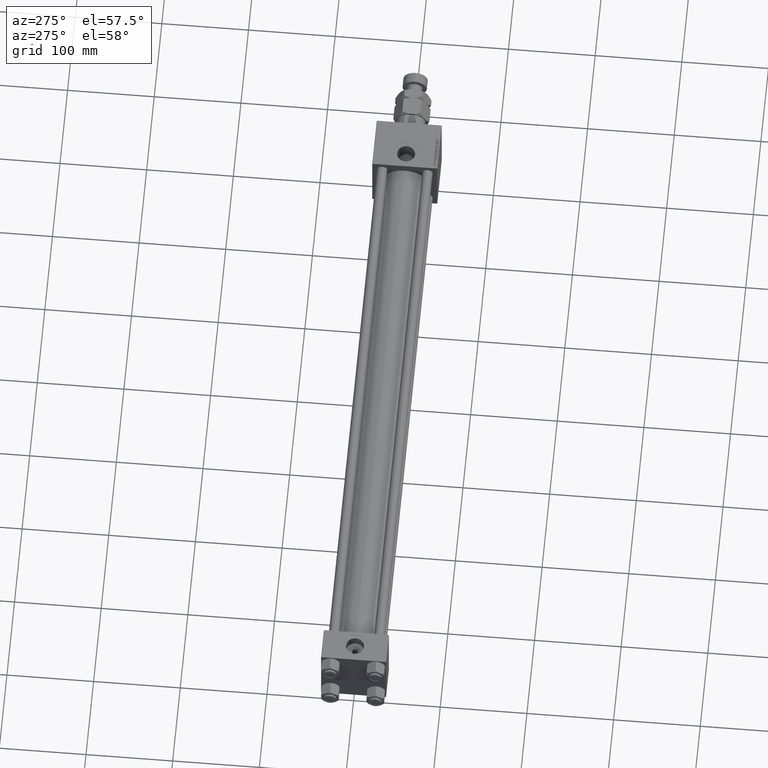
[diagram: clean part render]
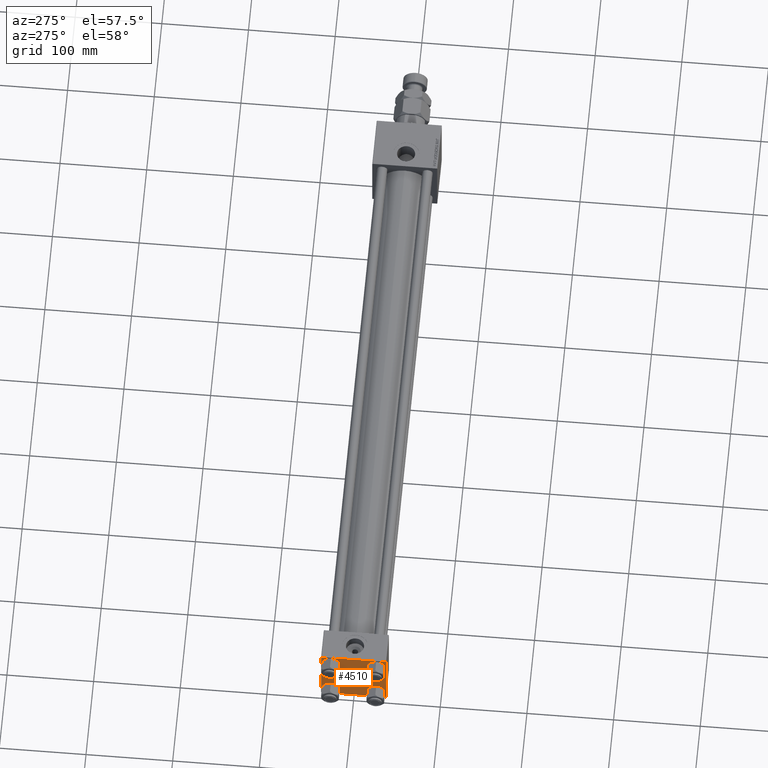
[diagram: same view with one face highlighted and labeled with its STEP entity id]
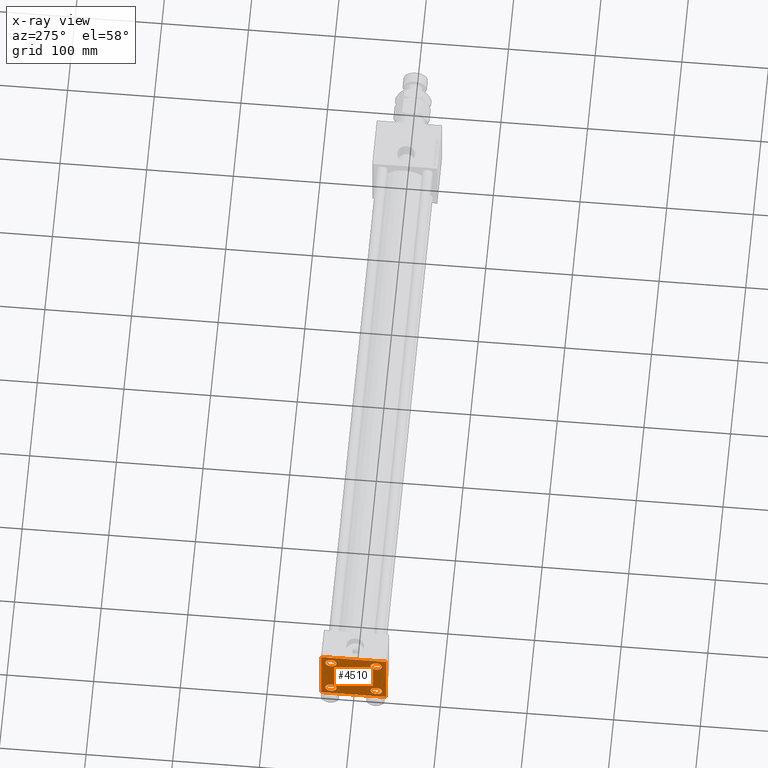
[diagram: x-ray of the same camera — body ghosted, the highlighted face saturated]
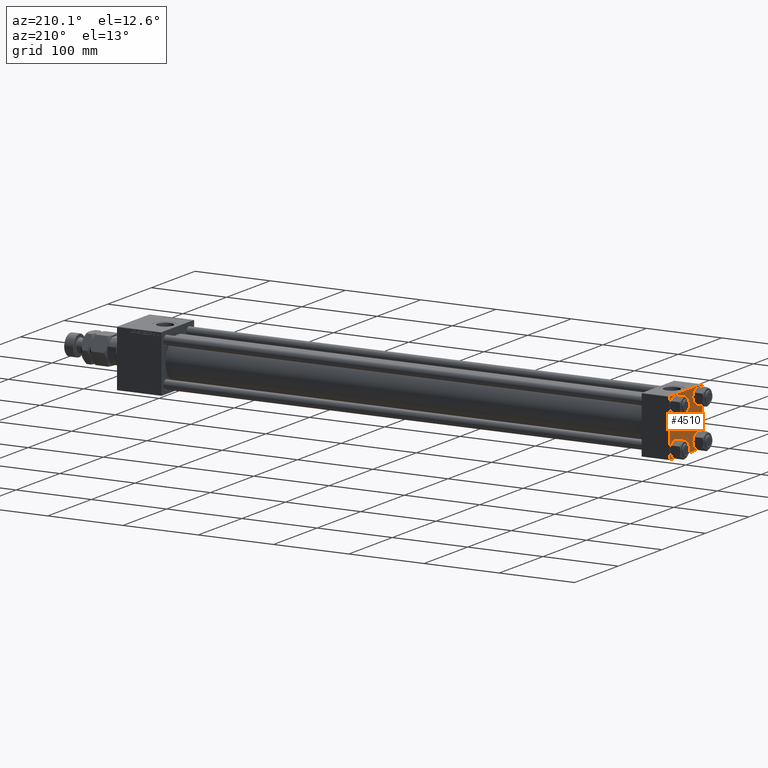
[diagram: same view with one face highlighted and labeled with its STEP entity id]
A machine part, auxiliary view. The second image highlights one B-rep face of the part: STEP entity #4510.
The next image is the same camera in x-ray: the body ghosted, the highlighted face saturated — about 0% of this face is hidden behind the body in this view.
A second angle (auxiliary view) of the same face is appended — the face is thin or edge-on in the first view.
In plain terms, the highlighted planar face has unit normal (-1, 0, 0).
Its self-contained STEP definition (entity closure, byte-faithful):
#8 = CARTESIAN_POINT ( 'NONE',  ( 0.000000000000000000, -37.24999999999975842, -37.25000000000027001 ) ) ;
#1369 = DIRECTION ( 'NONE',  ( 0.000000000000000000, 9.251858538542971581E-17, -1.000000000000000000 ) ) ;
#1380 = DIRECTION ( 'NONE',  ( 1.000000000000000000, -0.000000000000000000, 0.000000000000000000 ) ) ;
#1651 = DIRECTION ( 'NONE',  ( 0.000000000000000000, 0.000000000000000000, -1.000000000000000000 ) ) ;
#1669 = CARTESIAN_POINT ( 'NONE',  ( 0.000000000000000000, 37.49999999999999289, 37.50000000000000000 ) ) ;
#1820 = ORIENTED_EDGE ( 'NONE', *, *, #16905, .T. ) ;
#1882 = VERTEX_POINT ( 'NONE', #41108 ) ;
#1914 = DIRECTION ( 'NONE',  ( 0.000000000000000000, 0.000000000000000000, 1.000000000000000000 ) ) ;
#2213 = EDGE_LOOP ( 'NONE', ( #6030, #50611, #45205, #48214, #2912, #7703, #45341, #10768 ) ) ;
#2555 = AXIS2_PLACEMENT_3D ( 'NONE', #24634, #8550, #40721 ) ;
#2912 = ORIENTED_EDGE ( 'NONE', *, *, #47813, .F. ) ;
#3474 = AXIS2_PLACEMENT_3D ( 'NONE', #16465, #32538, #36254 ) ;
#3576 = DIRECTION ( 'NONE',  ( -0.000000000000000000, 0.000000000000000000, 1.000000000000000000 ) ) ;
#4510 = ADVANCED_FACE ( 'NONE', ( #32820, #32049, #39704, #48912, #20431 ), #24385, .T. ) ;
#6011 = VERTEX_POINT ( 'NONE', #24619 ) ;
#6030 = ORIENTED_EDGE ( 'NONE', *, *, #16854, .T. ) ;
#6479 = VERTEX_POINT ( 'NONE', #46975 ) ;
#6953 = VERTEX_POINT ( 'NONE', #24373 ) ;
#7194 = EDGE_CURVE ( 'NONE', #23714, #8152, #42148, .T. ) ;
#7410 = CARTESIAN_POINT ( 'NONE',  ( 0.000000000000000000, -26.14999999999999147, -19.64999999999999503 ) ) ;
#7584 = VERTEX_POINT ( 'NONE', #35563 ) ;
#7591 = CARTESIAN_POINT ( 'NONE',  ( 0.000000000000000000, 26.14999999999999858, 26.15000000000000213 ) ) ;
#7703 = ORIENTED_EDGE ( 'NONE', *, *, #8819, .T. ) ;
#7937 = DIRECTION ( 'NONE',  ( 1.000000000000000000, -0.000000000000000000, 0.000000000000000000 ) ) ;
#8034 = DIRECTION ( 'NONE',  ( -0.000000000000000000, 0.7071067811865474617, 0.7071067811865474617 ) ) ;
#8152 = VERTEX_POINT ( 'NONE', #26736 ) ;
#8513 = VECTOR ( 'NONE', #34648, 1000.000000000000000 ) ;
#8550 = DIRECTION ( 'NONE',  ( 1.000000000000000000, -0.000000000000000000, 0.000000000000000000 ) ) ;
#8716 = DIRECTION ( 'NONE',  ( 0.000000000000000000, 0.000000000000000000, 1.000000000000000000 ) ) ;
#8819 = EDGE_CURVE ( 'NONE', #18507, #1882, #36779, .T. ) ;
#9841 = VECTOR ( 'NONE', #1651, 1000.000000000000000 ) ;
#10727 = EDGE_CURVE ( 'NONE', #8152, #23714, #24590, .T. ) ;
#10768 = ORIENTED_EDGE ( 'NONE', *, *, #46869, .T. ) ;
#11903 = CARTESIAN_POINT ( 'NONE',  ( 0.000000000000000000, -26.14999999999999147, -26.15000000000000924 ) ) ;
#12319 = DIRECTION ( 'NONE',  ( 1.000000000000000000, -0.000000000000000000, 0.000000000000000000 ) ) ;
#13194 = VERTEX_POINT ( 'NONE', #29707 ) ;
#13600 = CIRCLE ( 'NONE', #3474, 6.500000000000015987 ) ;
#13814 = LINE ( 'NONE', #1669, #8513 ) ;
#14269 = CARTESIAN_POINT ( 'NONE',  ( 0.000000000000000000, 37.49999999999999289, 37.00000000000000000 ) ) ;
#14309 = CIRCLE ( 'NONE', #31970, 6.500000000000023093 ) ;
#14438 = EDGE_CURVE ( 'NONE', #6011, #7584, #22989, .T. ) ;
#14492 = EDGE_LOOP ( 'NONE', ( #23739, #44858 ) ) ;
#14847 = LINE ( 'NONE', #34361, #9841 ) ;
#15669 = DIRECTION ( 'NONE',  ( 1.000000000000000000, -0.000000000000000000, 0.000000000000000000 ) ) ;
#16012 = EDGE_CURVE ( 'NONE', #13194, #6011, #28233, .T. ) ;
#16224 = CARTESIAN_POINT ( 'NONE',  ( -0.000000000000000000, -37.25000000000000000, 37.25000000000000000 ) ) ;
#16285 = VECTOR ( 'NONE', #47007, 1000.000000000000000 ) ;
#16465 = CARTESIAN_POINT ( 'NONE',  ( 0.000000000000000000, -26.14999999999999147, -26.15000000000000924 ) ) ;
#16854 = EDGE_CURVE ( 'NONE', #44135, #13194, #14847, .T. ) ;
#16905 = EDGE_CURVE ( 'NONE', #6479, #49017, #20779, .T. ) ;
#17103 = CARTESIAN_POINT ( 'NONE',  ( 0.000000000000000000, -37.50000000000000711, 36.99999999999999289 ) ) ;
#18264 = DIRECTION ( 'NONE',  ( 1.000000000000000000, -0.000000000000000000, 0.000000000000000000 ) ) ;
#18507 = VERTEX_POINT ( 'NONE', #17103 ) ;
#18984 = VERTEX_POINT ( 'NONE', #37214 ) ;
#19596 = LINE ( 'NONE', #31723, #50292 ) ;
#19907 = CARTESIAN_POINT ( 'NONE',  ( 0.000000000000000000, 0.000000000000000000, 0.000000000000000000 ) ) ;
#20315 = DIRECTION ( 'NONE',  ( -0.000000000000000000, -0.7071067811865474617, -0.7071067811865474617 ) ) ;
#20431 = FACE_OUTER_BOUND ( 'NONE', #2213, .T. ) ;
#20512 = CIRCLE ( 'NONE', #26443, 6.500000000000023093 ) ;
#20779 = CIRCLE ( 'NONE', #25832, 6.500000000000023093 ) ;
#22627 = EDGE_LOOP ( 'NONE', ( #37415, #51838 ) ) ;
#22989 = LINE ( 'NONE', #25686, #16285 ) ;
#23163 = EDGE_CURVE ( 'NONE', #6953, #18984, #14309, .T. ) ;
#23167 = CARTESIAN_POINT ( 'NONE',  ( 0.000000000000000000, 26.14999999999999858, -32.65000000000001990 ) ) ;
#23714 = VERTEX_POINT ( 'NONE', #23167 ) ;
#23739 = ORIENTED_EDGE ( 'NONE', *, *, #10727, .T. ) ;
#23757 = DIRECTION ( 'NONE',  ( 0.000000000000000000, -0.7071067811865524577, 0.7071067811865426878 ) ) ;
#24373 = CARTESIAN_POINT ( 'NONE',  ( 0.000000000000000000, 26.14999999999999858, 32.65000000000002700 ) ) ;
#24385 = PLANE ( 'NONE',  #47947 ) ;
#24568 = EDGE_LOOP ( 'NONE', ( #47981, #42750 ) ) ;
#24590 = CIRCLE ( 'NONE', #33029, 6.500000000000015987 ) ;
#24619 = CARTESIAN_POINT ( 'NONE',  ( 0.000000000000000000, 36.99999999999997868, -37.50000000000000000 ) ) ;
#24634 = CARTESIAN_POINT ( 'NONE',  ( 0.000000000000000000, 26.14999999999999858, -26.15000000000000213 ) ) ;
#25090 = LINE ( 'NONE', #41713, #30161 ) ;
#25102 = CARTESIAN_POINT ( 'NONE',  ( 0.000000000000000000, -26.14999999999999147, 26.15000000000000924 ) ) ;
#25686 = CARTESIAN_POINT ( 'NONE',  ( 0.000000000000000000, 37.49999999999999289, -37.50000000000000000 ) ) ;
#25832 = AXIS2_PLACEMENT_3D ( 'NONE', #27473, #30931, #39857 ) ;
#26166 = CARTESIAN_POINT ( 'NONE',  ( 0.000000000000000000, 26.14999999999999858, 26.15000000000000213 ) ) ;
#26443 = AXIS2_PLACEMENT_3D ( 'NONE', #25102, #1380, #33550 ) ;
#26579 = EDGE_CURVE ( 'NONE', #39595, #1882, #13814, .T. ) ;
#26736 = CARTESIAN_POINT ( 'NONE',  ( 0.000000000000000000, 26.14999999999999858, -19.64999999999998792 ) ) ;
#27473 = CARTESIAN_POINT ( 'NONE',  ( 0.000000000000000000, -26.14999999999999147, 26.15000000000000924 ) ) ;
#28233 = LINE ( 'NONE', #44317, #29189 ) ;
#28669 = DIRECTION ( 'NONE',  ( 0.000000000000000000, 0.000000000000000000, 1.000000000000000000 ) ) ;
#29189 = VECTOR ( 'NONE', #20315, 1000.000000000000114 ) ;
#29707 = CARTESIAN_POINT ( 'NONE',  ( 0.000000000000000000, 37.49999999999999289, -36.99999999999998579 ) ) ;
#30161 = VECTOR ( 'NONE', #1369, 1000.000000000000000 ) ;
#30340 = EDGE_CURVE ( 'NONE', #37078, #38185, #13600, .T. ) ;
#30931 = DIRECTION ( 'NONE',  ( 1.000000000000000000, -0.000000000000000000, 0.000000000000000000 ) ) ;
#31723 = CARTESIAN_POINT ( 'NONE',  ( 0.000000000000000000, 37.24999999999999289, 37.24999999999999289 ) ) ;
#31970 = AXIS2_PLACEMENT_3D ( 'NONE', #7591, #12319, #28669 ) ;
#32049 = FACE_BOUND ( 'NONE', #24568, .T. ) ;
#32185 = CIRCLE ( 'NONE', #43168, 6.500000000000023093 ) ;
#32538 = DIRECTION ( 'NONE',  ( 1.000000000000000000, -0.000000000000000000, 0.000000000000000000 ) ) ;
#32692 = EDGE_LOOP ( 'NONE', ( #42738, #1820 ) ) ;
#32820 = FACE_BOUND ( 'NONE', #32692, .T. ) ;
#33029 = AXIS2_PLACEMENT_3D ( 'NONE', #35968, #15669, #51012 ) ;
#33222 = EDGE_CURVE ( 'NONE', #18984, #6953, #32185, .T. ) ;
#33550 = DIRECTION ( 'NONE',  ( 0.000000000000000000, 0.000000000000000000, 1.000000000000000000 ) ) ;
#34361 = CARTESIAN_POINT ( 'NONE',  ( 0.000000000000000000, 37.49999999999999289, 37.50000000000000000 ) ) ;
#34643 = CARTESIAN_POINT ( 'NONE',  ( 0.000000000000000000, -26.14999999999999147, 32.65000000000003411 ) ) ;
#34648 = DIRECTION ( 'NONE',  ( 0.000000000000000000, -1.000000000000000000, -9.251858538542971581E-17 ) ) ;
#34902 = EDGE_CURVE ( 'NONE', #7584, #45014, #51463, .T. ) ;
#35563 = CARTESIAN_POINT ( 'NONE',  ( 0.000000000000000000, -37.00000000000002132, -37.50000000000000711 ) ) ;
#35629 = EDGE_CURVE ( 'NONE', #49017, #6479, #20512, .T. ) ;
#35968 = CARTESIAN_POINT ( 'NONE',  ( 0.000000000000000000, 26.14999999999999858, -26.15000000000000213 ) ) ;
#36254 = DIRECTION ( 'NONE',  ( 0.000000000000000000, 0.000000000000000000, 1.000000000000000000 ) ) ;
#36779 = LINE ( 'NONE', #16224, #47286 ) ;
#37078 = VERTEX_POINT ( 'NONE', #7410 ) ;
#37214 = CARTESIAN_POINT ( 'NONE',  ( 0.000000000000000000, 26.14999999999999858, 19.64999999999998437 ) ) ;
#37415 = ORIENTED_EDGE ( 'NONE', *, *, #23163, .T. ) ;
#38185 = VERTEX_POINT ( 'NONE', #51651 ) ;
#39595 = VERTEX_POINT ( 'NONE', #45628 ) ;
#39704 = FACE_BOUND ( 'NONE', #14492, .T. ) ;
#39857 = DIRECTION ( 'NONE',  ( 0.000000000000000000, 0.000000000000000000, 1.000000000000000000 ) ) ;
#40721 = DIRECTION ( 'NONE',  ( 0.000000000000000000, 0.000000000000000000, 1.000000000000000000 ) ) ;
#41108 = CARTESIAN_POINT ( 'NONE',  ( 0.000000000000000000, -37.00000000000000711, 37.49999999999999289 ) ) ;
#41713 = CARTESIAN_POINT ( 'NONE',  ( 0.000000000000000000, -37.50000000000000711, 37.49999999999999289 ) ) ;
#42148 = CIRCLE ( 'NONE', #2555, 6.500000000000015987 ) ;
#42738 = ORIENTED_EDGE ( 'NONE', *, *, #35629, .T. ) ;
#42750 = ORIENTED_EDGE ( 'NONE', *, *, #48282, .T. ) ;
#43168 = AXIS2_PLACEMENT_3D ( 'NONE', #26166, #18264, #1914 ) ;
#43664 = DIRECTION ( 'NONE',  ( -1.000000000000000000, 0.000000000000000000, -0.000000000000000000 ) ) ;
#44135 = VERTEX_POINT ( 'NONE', #14269 ) ;
#44317 = CARTESIAN_POINT ( 'NONE',  ( 0.000000000000000000, 37.24999999999998579, -37.24999999999998579 ) ) ;
#44858 = ORIENTED_EDGE ( 'NONE', *, *, #7194, .T. ) ;
#45014 = VERTEX_POINT ( 'NONE', #50332 ) ;
#45205 = ORIENTED_EDGE ( 'NONE', *, *, #14438, .T. ) ;
#45341 = ORIENTED_EDGE ( 'NONE', *, *, #26579, .F. ) ;
#45628 = CARTESIAN_POINT ( 'NONE',  ( 0.000000000000000000, 36.99999999999999289, 37.50000000000000000 ) ) ;
#46869 = EDGE_CURVE ( 'NONE', #39595, #44135, #19596, .T. ) ;
#46975 = CARTESIAN_POINT ( 'NONE',  ( 0.000000000000000000, -26.14999999999999147, 19.64999999999999147 ) ) ;
#47007 = DIRECTION ( 'NONE',  ( 0.000000000000000000, -1.000000000000000000, -9.251858538542972814E-17 ) ) ;
#47286 = VECTOR ( 'NONE', #8034, 1000.000000000000114 ) ;
#47813 = EDGE_CURVE ( 'NONE', #18507, #45014, #25090, .T. ) ;
#47816 = DIRECTION ( 'NONE',  ( 0.000000000000000000, 0.7071067811865474617, -0.7071067811865474617 ) ) ;
#47947 = AXIS2_PLACEMENT_3D ( 'NONE', #19907, #43664, #3576 ) ;
#47981 = ORIENTED_EDGE ( 'NONE', *, *, #30340, .T. ) ;
#48214 = ORIENTED_EDGE ( 'NONE', *, *, #34902, .T. ) ;
#48282 = EDGE_CURVE ( 'NONE', #38185, #37078, #51194, .T. ) ;
#48912 = FACE_BOUND ( 'NONE', #22627, .T. ) ;
#49017 = VERTEX_POINT ( 'NONE', #34643 ) ;
#49125 = VECTOR ( 'NONE', #23757, 1000.000000000000000 ) ;
#50292 = VECTOR ( 'NONE', #47816, 1000.000000000000114 ) ;
#50332 = CARTESIAN_POINT ( 'NONE',  ( 0.000000000000000000, -37.50000000000000000, -37.00000000000003553 ) ) ;
#50611 = ORIENTED_EDGE ( 'NONE', *, *, #16012, .T. ) ;
#51012 = DIRECTION ( 'NONE',  ( 0.000000000000000000, 0.000000000000000000, 1.000000000000000000 ) ) ;
#51194 = CIRCLE ( 'NONE', #52004, 6.500000000000015987 ) ;
#51463 = LINE ( 'NONE', #8, #49125 ) ;
#51651 = CARTESIAN_POINT ( 'NONE',  ( 0.000000000000000000, -26.14999999999999147, -32.65000000000002700 ) ) ;
#51838 = ORIENTED_EDGE ( 'NONE', *, *, #33222, .T. ) ;
#52004 = AXIS2_PLACEMENT_3D ( 'NONE', #11903, #7937, #8716 ) ;